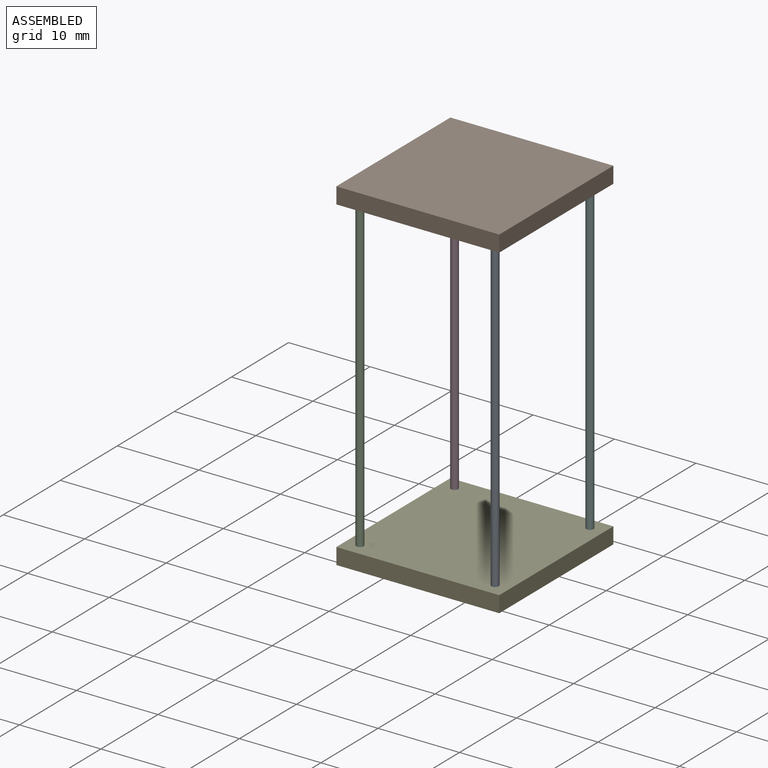
[diagram: assembled view]
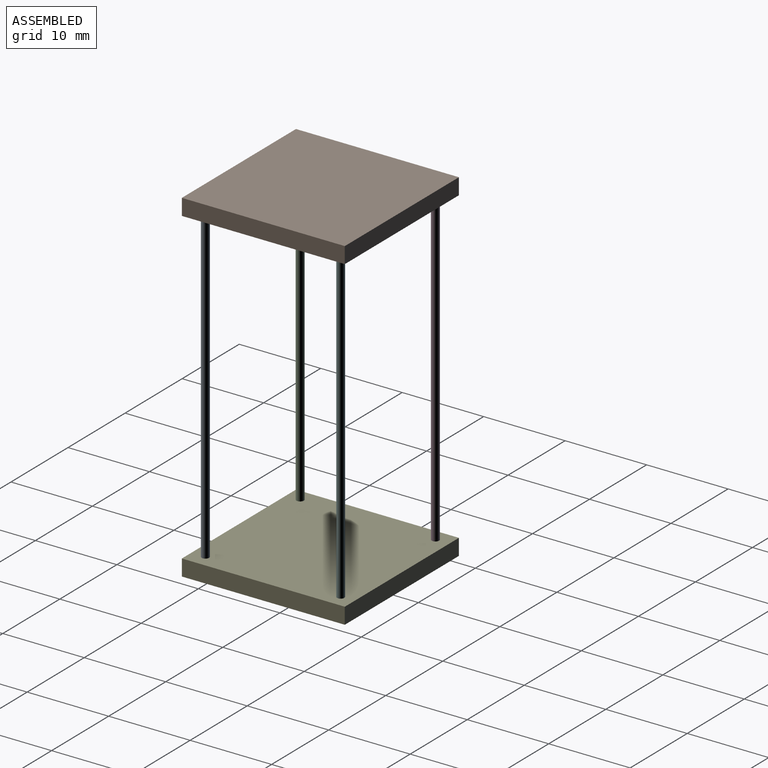
[diagram: assembled view, second angle]
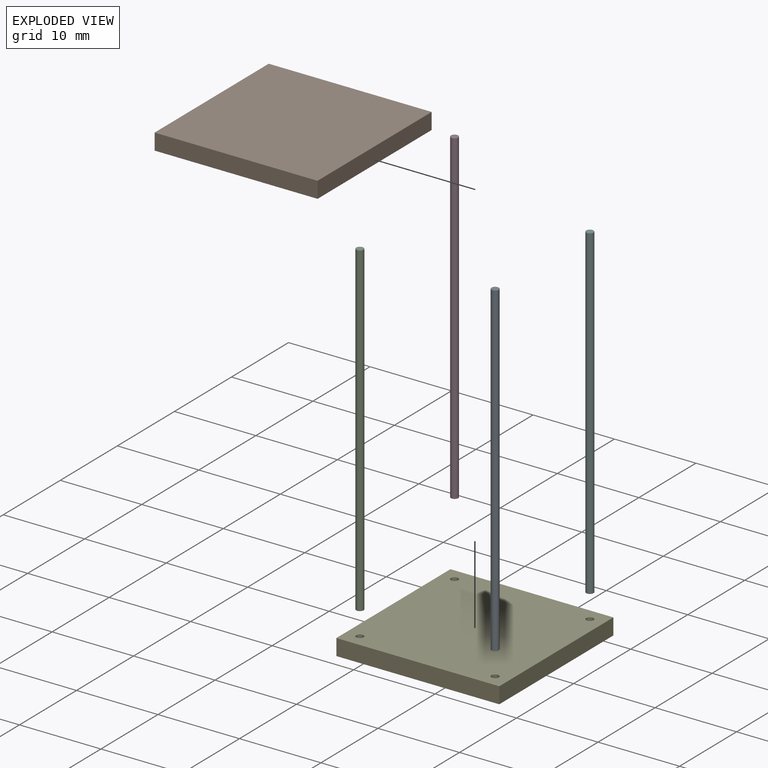
[diagram: exploded view]
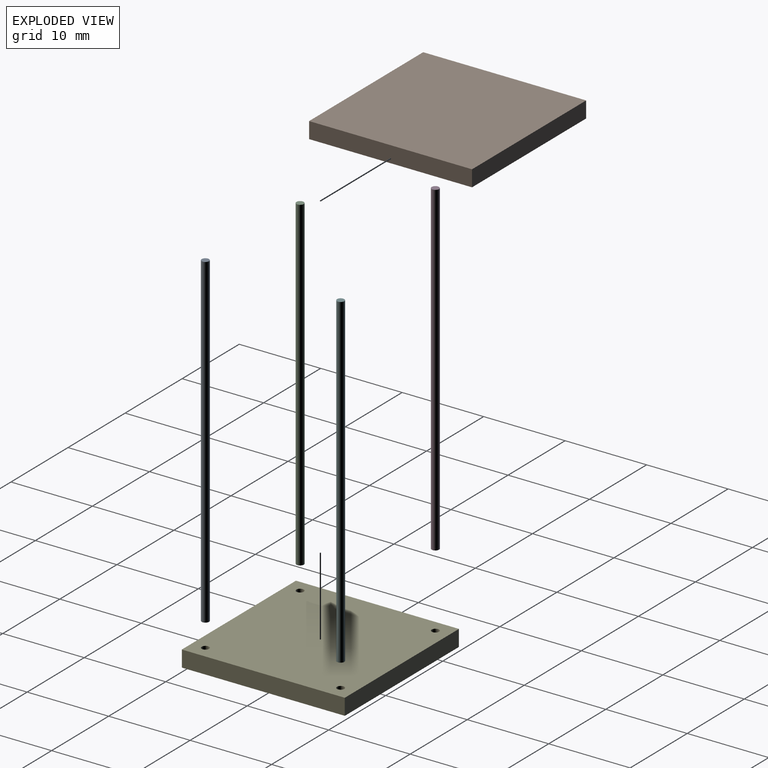
[diagram: exploded view, second angle]
ASSEMBLY  parts=6 mates=5
PART A: 3 faces, bbox 0.9x0.9x40 mm
  f0: cylinder r=0.45mm len=40mm, axis (0,0,-1), area 113.1mm2, adj f1,f2
  f1: plane 0.9x0.9mm, normal (0,0,1), area 0.6mm2, adj f0
  f2: plane 0.9x0.9mm, normal (0,0,-1), area 0.6mm2, adj f0
PART B: 14 faces, bbox 20x20x2 mm
  f0: plane 20x20mm, normal (0,0,1), area 397.5mm2, adj f1,f2,f3,f4,f6,f8,f10,f12
  f1: plane 20x2mm, normal (0,-1,0), area 40mm2, adj f0,f2,f4,f5
  f2: plane 20x2mm, normal (1,0,0), area 40mm2, adj f0,f1,f3,f5
  f3: plane 20x2mm, normal (0,1,0), area 40mm2, adj f0,f2,f4,f5
  f4: plane 20x2mm, normal (-1,0,0), area 40mm2, adj f0,f1,f3,f5
  f5: plane 20x20mm, normal (0,0,-1), area 400mm2, adj f1,f2,f3,f4
  f6: cylinder r=0.45mm len=1mm, axis (0,0,1), area 2.8mm2, adj f0,f7
  f7: plane 0.9x0.9mm, normal (0,0,1), area 0.6mm2, adj f6
  f8: cylinder r=0.45mm len=1mm, axis (0,0,1), area 2.8mm2, adj f0,f9
  f9: plane 0.9x0.9mm, normal (0,0,1), area 0.6mm2, adj f8
  f10: cylinder r=0.45mm len=1mm, axis (0,0,1), area 2.8mm2, adj f0,f11
  f11: plane 0.9x0.9mm, normal (0,0,1), area 0.6mm2, adj f10
  f12: cylinder r=0.45mm len=1mm, axis (0,0,1), area 2.8mm2, adj f0,f13
  f13: plane 0.9x0.9mm, normal (0,0,1), area 0.6mm2, adj f12
PART C: same geometry as A
PART D: same geometry as A
PART E: same geometry as B
PART F: same geometry as A
PLACE A t=(5.95,-17.96,7.23)mm
PLACE B rot(axis=(1,0,0),180deg) t=(-2.35,-9.66,48.23)mm
PLACE C rot(axis=(1,0,0),180deg) t=(-10.65,-17.96,47.23)mm
PLACE D rot(axis=(1,0,0),180deg) t=(-10.65,-1.36,47.23)mm
PLACE E t=(-2.35,-9.66,6.23)mm
PLACE F rot(axis=(1,0,0),180deg) t=(5.95,-1.36,47.23)mm
MATE fastened F.f0 <-> B.f8  axis (0,0,1) through (5.95,-1.36,47.23)mm
MATE fastened D.f0 <-> B.f12  axis (0,0,1) through (-10.65,-1.36,47.23)mm
MATE fastened A.f0 <-> B.f10  axis (0,0,1) through (5.95,-17.96,47.23)mm
MATE fastened E.f8 <-> A.f0  axis (0,0,1) through (5.95,-17.96,7.23)mm
MATE fastened B.f6 <-> C.f0  axis (0,0,-1) through (-10.65,-17.96,47.23)mm
